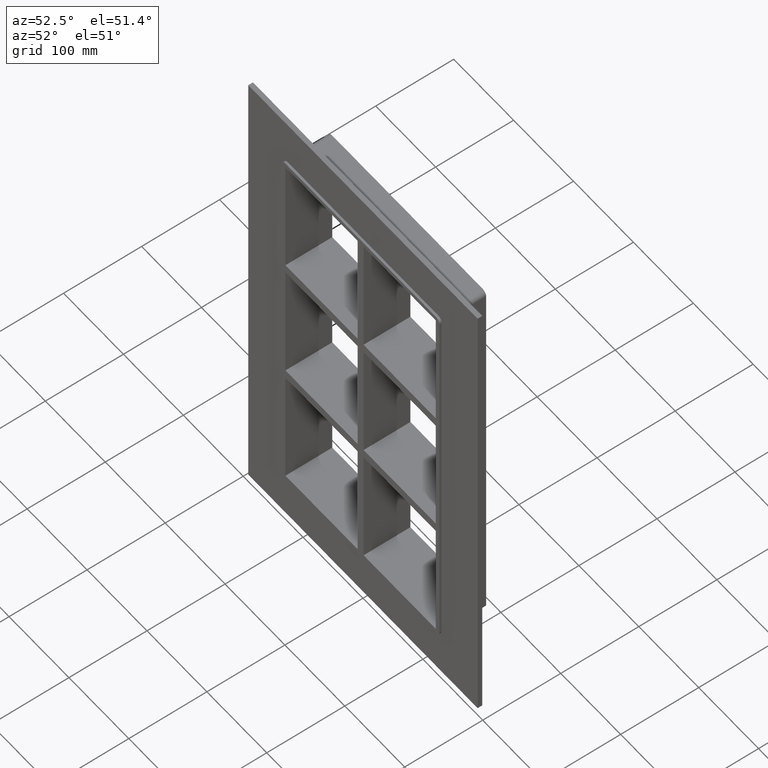
[diagram: clean part render]
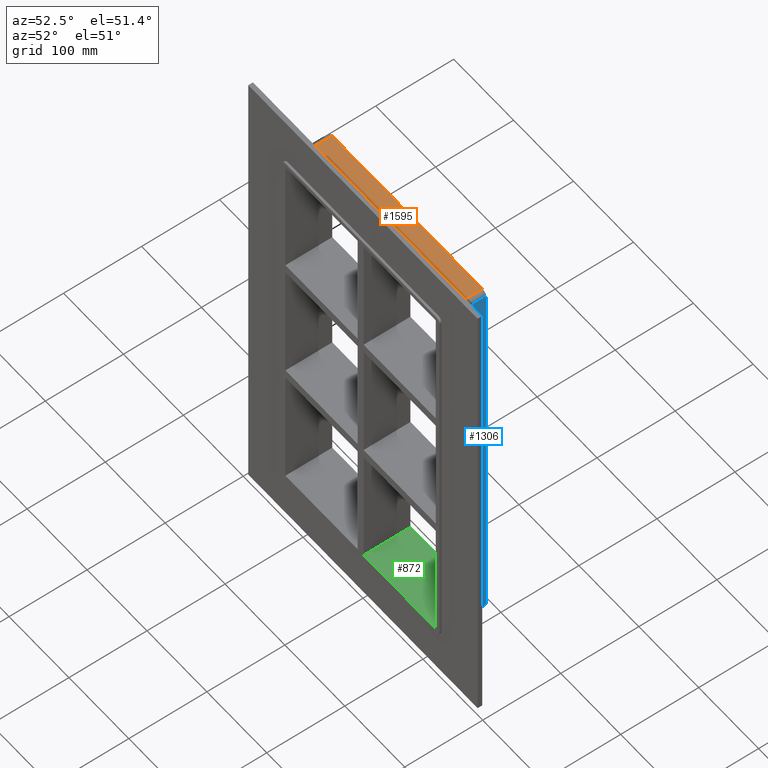
[diagram: same view with three faces highlighted in distinct colors, each labeled with its STEP entity id]
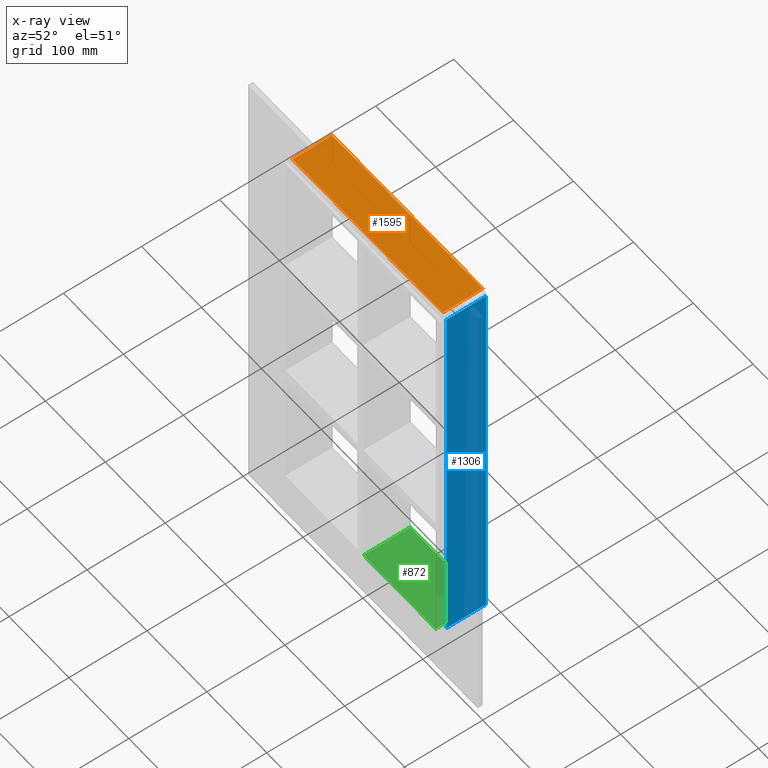
[diagram: x-ray of the same camera — body ghosted, the three highlighted faces saturated]
A machine part, auxiliary view with three faces highlighted in distinct colors.
The next image is the same camera in x-ray (body ghosted, the three faces saturated) — at least one of them is partly hidden behind the body in this view.
Their STEP definitions:

[orange] entity #1595 — the highlighted planar face has unit normal (0, 0, 1).
#650=CARTESIAN_POINT('',(-125.49999999999997,57.0,257.25));
#651=VERTEX_POINT('',#650);
#659=CARTESIAN_POINT('',(125.50000000000004,57.0,257.25));
#660=VERTEX_POINT('',#659);
#661=CARTESIAN_POINT('',(-125.49999999999999,57.0,257.25));
#662=DIRECTION('',(1.0,0.0,0.0));
#663=VECTOR('',#662,251.0);
#664=LINE('',#661,#663);
#665=EDGE_CURVE('',#651,#660,#664,.T.);
#982=CARTESIAN_POINT('',(125.50000000000004,6.000000000000001,257.25));
#983=VERTEX_POINT('',#982);
#991=CARTESIAN_POINT('',(-125.49999999999997,6.000000000000001,257.25));
#992=VERTEX_POINT('',#991);
#993=CARTESIAN_POINT('',(-125.49999999999997,6.000000000000001,257.25));
#994=DIRECTION('',(1.0,0.0,0.0));
#995=VECTOR('',#994,251.0);
#996=LINE('',#993,#995);
#997=EDGE_CURVE('',#992,#983,#996,.T.);
#1257=CARTESIAN_POINT('',(125.50000000000004,57.0,257.25));
#1258=DIRECTION('',(0.0,-1.0,0.0));
#1259=VECTOR('',#1258,51.0);
#1260=LINE('',#1257,#1259);
#1261=EDGE_CURVE('',#660,#983,#1260,.T.);
#1573=CARTESIAN_POINT('',(-125.49999999999997,6.000000000000001,257.25));
#1574=DIRECTION('',(0.0,1.0,0.0));
#1575=VECTOR('',#1574,51.0);
#1576=LINE('',#1573,#1575);
#1577=EDGE_CURVE('',#992,#651,#1576,.T.);
#1584=CARTESIAN_POINT('',(-131.5,0.0,257.25));
#1585=DIRECTION('',(0.0,0.0,1.0));
#1586=DIRECTION('',(1.0,0.0,0.0));
#1587=AXIS2_PLACEMENT_3D('',#1584,#1585,#1586);
#1588=PLANE('',#1587);
#1589=ORIENTED_EDGE('',*,*,#997,.T.);
#1590=ORIENTED_EDGE('',*,*,#1261,.F.);
#1591=ORIENTED_EDGE('',*,*,#665,.F.);
#1592=ORIENTED_EDGE('',*,*,#1577,.F.);
#1593=EDGE_LOOP('',(#1589,#1590,#1591,#1592));
#1594=FACE_OUTER_BOUND('',#1593,.T.);
#1595=ADVANCED_FACE('',(#1594),#1588,.T.);

[blue] entity #1306 — the highlighted planar face has unit normal (1, 0, 0).
#616=CARTESIAN_POINT('',(131.50000000000003,57.0,-251.25));
#617=VERTEX_POINT('',#616);
#667=CARTESIAN_POINT('',(131.50000000000003,57.0,251.25));
#668=VERTEX_POINT('',#667);
#676=CARTESIAN_POINT('',(131.50000000000003,57.0,251.25));
#677=DIRECTION('',(0.0,0.0,-1.0));
#678=VECTOR('',#677,502.5);
#679=LINE('',#676,#678);
#680=EDGE_CURVE('',#668,#617,#679,.T.);
#965=CARTESIAN_POINT('',(131.50000000000003,6.000000000000001,-251.25));
#966=VERTEX_POINT('',#965);
#974=CARTESIAN_POINT('',(131.50000000000003,6.000000000000001,251.25));
#975=VERTEX_POINT('',#974);
#976=CARTESIAN_POINT('',(131.50000000000003,6.000000000000001,251.25));
#977=DIRECTION('',(0.0,0.0,-1.0));
#978=VECTOR('',#977,502.5);
#979=LINE('',#976,#978);
#980=EDGE_CURVE('',#975,#966,#979,.T.);
#1250=CARTESIAN_POINT('',(131.50000000000003,6.000000000000001,251.25));
#1251=DIRECTION('',(0.0,1.0,0.0));
#1252=VECTOR('',#1251,51.0);
#1253=LINE('',#1250,#1252);
#1254=EDGE_CURVE('',#975,#668,#1253,.T.);
#1290=CARTESIAN_POINT('',(131.50000000000003,0.0,257.25));
#1291=DIRECTION('',(1.0,0.0,0.0));
#1292=DIRECTION('',(0.0,0.0,-1.0));
#1293=AXIS2_PLACEMENT_3D('',#1290,#1291,#1292);
#1294=PLANE('',#1293);
#1295=ORIENTED_EDGE('',*,*,#980,.T.);
#1296=CARTESIAN_POINT('',(131.50000000000003,57.0,-251.25));
#1297=DIRECTION('',(0.0,-1.0,0.0));
#1298=VECTOR('',#1297,51.0);
#1299=LINE('',#1296,#1298);
#1300=EDGE_CURVE('',#617,#966,#1299,.T.);
#1301=ORIENTED_EDGE('',*,*,#1300,.F.);
#1302=ORIENTED_EDGE('',*,*,#680,.F.);
#1303=ORIENTED_EDGE('',*,*,#1254,.F.);
#1304=EDGE_LOOP('',(#1295,#1301,#1302,#1303));
#1305=FACE_OUTER_BOUND('',#1304,.T.);
#1306=ADVANCED_FACE('',(#1305),#1294,.T.);

[green] entity #872 — the highlighted planar face has unit normal (0, 0, -1).
#584=CARTESIAN_POINT('',(125.5,57.0,-251.25));
#585=VERTEX_POINT('',#584);
#592=CARTESIAN_POINT('',(125.5,-3.0,-251.25));
#593=VERTEX_POINT('',#592);
#594=CARTESIAN_POINT('',(125.5,56.999999999999993,-251.25));
#595=DIRECTION('',(0.0,-1.0,0.0));
#596=VECTOR('',#595,59.999999999999993);
#597=LINE('',#594,#596);
#598=EDGE_CURVE('',#585,#593,#597,.T.);
#749=CARTESIAN_POINT('',(5.0,57.0,-251.24999999998423));
#750=VERTEX_POINT('',#749);
#757=CARTESIAN_POINT('',(5.0,57.0,-251.25));
#758=DIRECTION('',(1.0,0.0,0.0));
#759=VECTOR('',#758,120.5);
#760=LINE('',#757,#759);
#761=EDGE_CURVE('',#750,#585,#760,.T.);
#814=CARTESIAN_POINT('',(5.0,-3.0,-251.24999999998423));
#815=VERTEX_POINT('',#814);
#822=CARTESIAN_POINT('',(5.0,57.000000000000007,-251.25));
#823=DIRECTION('',(0.0,-1.0,0.0));
#824=VECTOR('',#823,60.000000000000007);
#825=LINE('',#822,#824);
#826=EDGE_CURVE('',#750,#815,#825,.T.);
#856=CARTESIAN_POINT('',(125.5,0.0,-251.25));
#857=DIRECTION('',(0.0,0.0,-1.0));
#858=DIRECTION('',(-1.0,0.0,0.0));
#859=AXIS2_PLACEMENT_3D('',#856,#857,#858);
#860=PLANE('',#859);
#861=ORIENTED_EDGE('',*,*,#826,.T.);
#862=CARTESIAN_POINT('',(125.5,-3.0,-251.25));
#863=DIRECTION('',(-1.0,0.0,0.0));
#864=VECTOR('',#863,120.5);
#865=LINE('',#862,#864);
#866=EDGE_CURVE('',#593,#815,#865,.T.);
#867=ORIENTED_EDGE('',*,*,#866,.F.);
#868=ORIENTED_EDGE('',*,*,#598,.F.);
#869=ORIENTED_EDGE('',*,*,#761,.F.);
#870=EDGE_LOOP('',(#861,#867,#868,#869));
#871=FACE_OUTER_BOUND('',#870,.T.);
#872=ADVANCED_FACE('',(#871),#860,.F.);